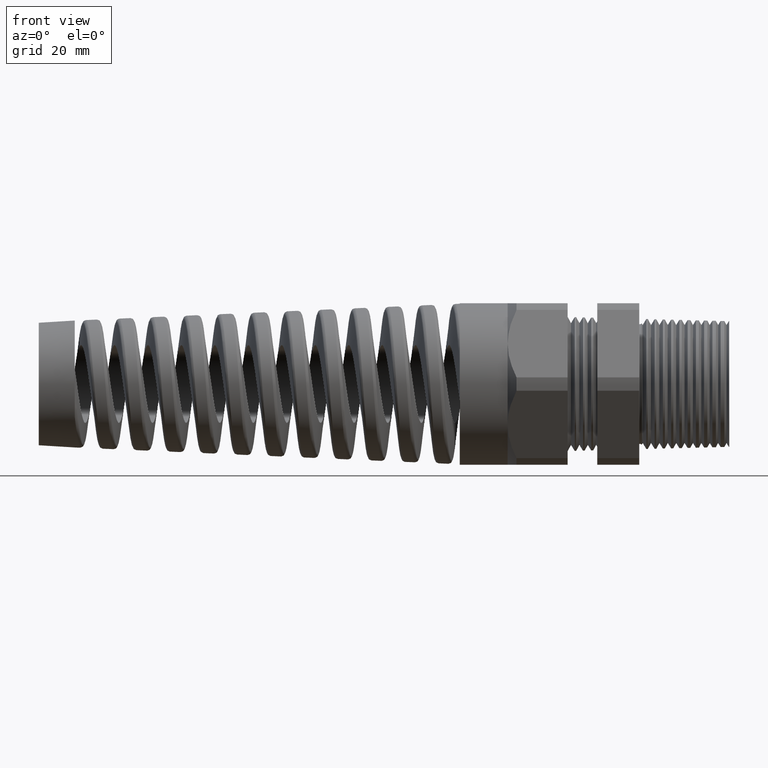
[diagram: clean part render]
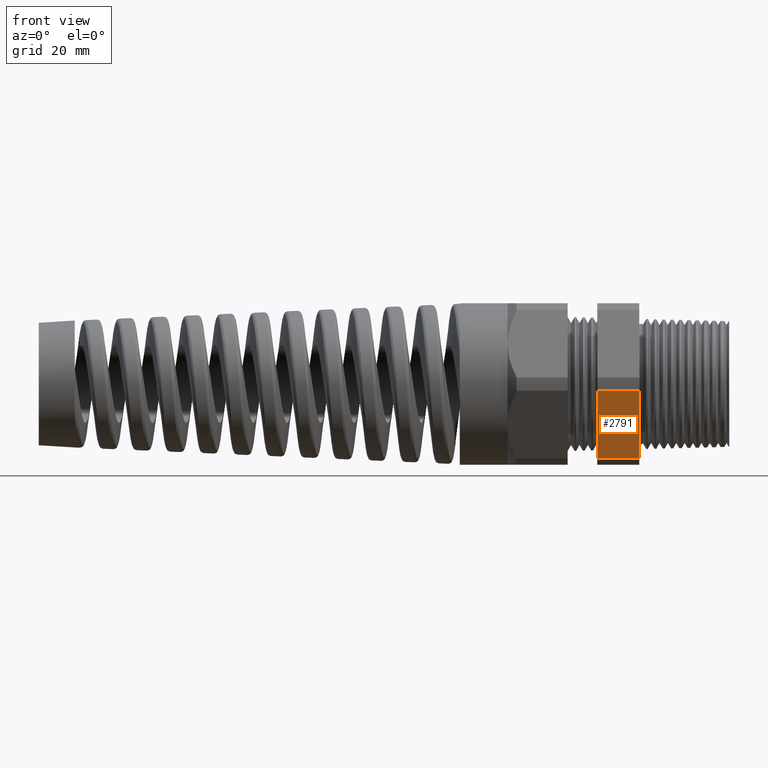
[diagram: same view with one face highlighted and labeled with its STEP entity id]
A machine part, front view. The second image highlights one B-rep face of the part: STEP entity #2791.
In plain terms, the highlighted planar face has unit normal (0, -0.866, -0.5).
Its self-contained STEP definition (entity closure, byte-faithful):
#155 = CARTESIAN_POINT ( 'NONE',  ( -0.5855905511811022600, -0.3313250556190258700, -0.4861281698472630400 ) ) ;
#2615 = EDGE_CURVE ( 'NONE', #6693, #2616, #4629, .T. ) ;
#2616 = VERTEX_POINT ( 'NONE', #4625 ) ;
#2791 = ADVANCED_FACE ( 'NONE', ( #12093 ), #12092, .T. ) ;
#2792 = EDGE_LOOP ( 'NONE', ( #2793, #2794, #2795, #2797 ) ) ;
#2793 = ORIENTED_EDGE ( 'NONE', *, *, #2843, .T. ) ;
#2794 = ORIENTED_EDGE ( 'NONE', *, *, #2615, .F. ) ;
#2795 = ORIENTED_EDGE ( 'NONE', *, *, #2796, .F. ) ;
#2796 = EDGE_CURVE ( 'NONE', #4317, #6693, #12087, .T. ) ;
#2797 = ORIENTED_EDGE ( 'NONE', *, *, #4316, .F. ) ;
#2843 = EDGE_CURVE ( 'NONE', #4314, #2616, #12004, .T. ) ;
#4314 = VERTEX_POINT ( 'NONE', #18601 ) ;
#4316 = EDGE_CURVE ( 'NONE', #4314, #4317, #18600, .T. ) ;
#4317 = VERTEX_POINT ( 'NONE', #18596 ) ;
#4625 = CARTESIAN_POINT ( 'NONE',  ( -0.5855905511811022600, -0.5866618723924791300, -0.04387183015273716400 ) ) ;
#4626 = DIRECTION ( 'NONE',  ( 0.0000000000000000000, -0.5000000000000002200, 0.8660254037844386000 ) ) ;
#4627 = VECTOR ( 'NONE', #4626, 39.37007874015747400 ) ;
#4628 = CARTESIAN_POINT ( 'NONE',  ( -0.5855905511811022600, -0.1939934640057524300, -0.7239934640057527100 ) ) ;
#4629 = LINE ( 'NONE', #4628, #4627 ) ;
#6693 = VERTEX_POINT ( 'NONE', #155 ) ;
#12001 = DIRECTION ( 'NONE',  ( -1.000000000000000000, 0.0000000000000000000, 0.0000000000000000000 ) ) ;
#12002 = VECTOR ( 'NONE', #12001, 39.37007874015748100 ) ;
#12003 = CARTESIAN_POINT ( 'NONE',  ( 0.2799999999999998600, -0.5866618723924791300, -0.04387183015273716400 ) ) ;
#12004 = LINE ( 'NONE', #12003, #12002 ) ;
#12084 = DIRECTION ( 'NONE',  ( -1.000000000000000000, 0.0000000000000000000, 0.0000000000000000000 ) ) ;
#12085 = VECTOR ( 'NONE', #12084, 39.37007874015748100 ) ;
#12086 = CARTESIAN_POINT ( 'NONE',  ( 0.2799999999999998600, -0.3313250556190258700, -0.4861281698472630400 ) ) ;
#12087 = LINE ( 'NONE', #12086, #12085 ) ;
#12088 = DIRECTION ( 'NONE',  ( 0.0000000000000000000, 0.5000000000000001100, -0.8660254037844386000 ) ) ;
#12089 = DIRECTION ( 'NONE',  ( 0.0000000000000000000, -0.8660254037844386000, -0.5000000000000001100 ) ) ;
#12090 = CARTESIAN_POINT ( 'NONE',  ( 0.2799999999999998600, -0.3313250556190259800, -0.4861281698472630400 ) ) ;
#12091 = AXIS2_PLACEMENT_3D ( 'NONE', #12090, #12089, #12088 ) ;
#12092 = PLANE ( 'NONE',  #12091 ) ;
#12093 = FACE_OUTER_BOUND ( 'NONE', #2792, .T. ) ;
#18596 = CARTESIAN_POINT ( 'NONE',  ( -0.3100000000000000000, -0.3313250556190258700, -0.4861281698472630400 ) ) ;
#18597 = DIRECTION ( 'NONE',  ( 0.0000000000000000000, 0.5000000000000002200, -0.8660254037844386000 ) ) ;
#18598 = VECTOR ( 'NONE', #18597, 39.37007874015747400 ) ;
#18599 = CARTESIAN_POINT ( 'NONE',  ( -0.3100000000000000000, -0.1939934640057522900, -0.7239934640057527100 ) ) ;
#18600 = LINE ( 'NONE', #18599, #18598 ) ;
#18601 = CARTESIAN_POINT ( 'NONE',  ( -0.3100000000000000000, -0.5866618723924791300, -0.04387183015273716400 ) ) ;